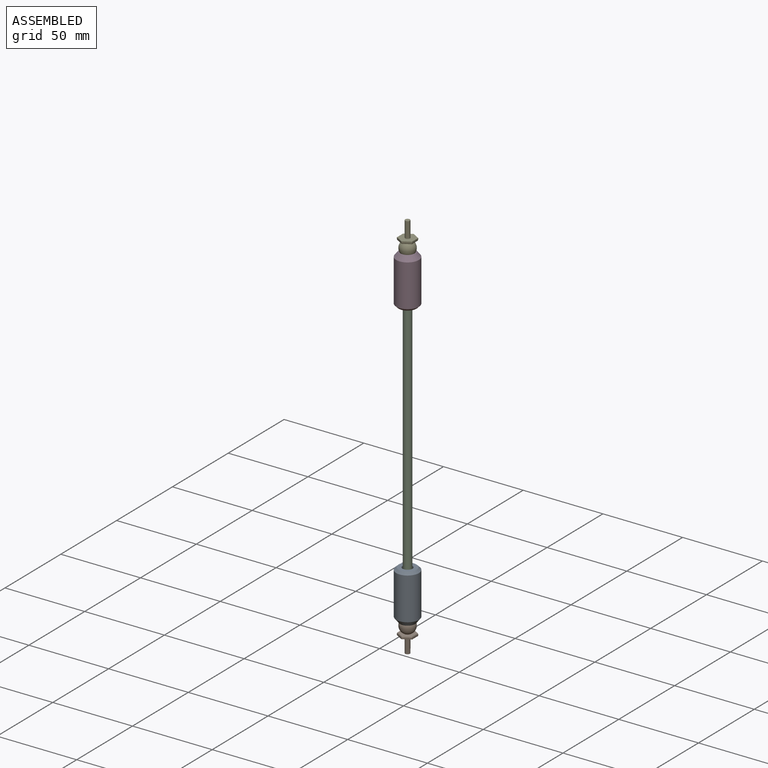
[diagram: assembled view]
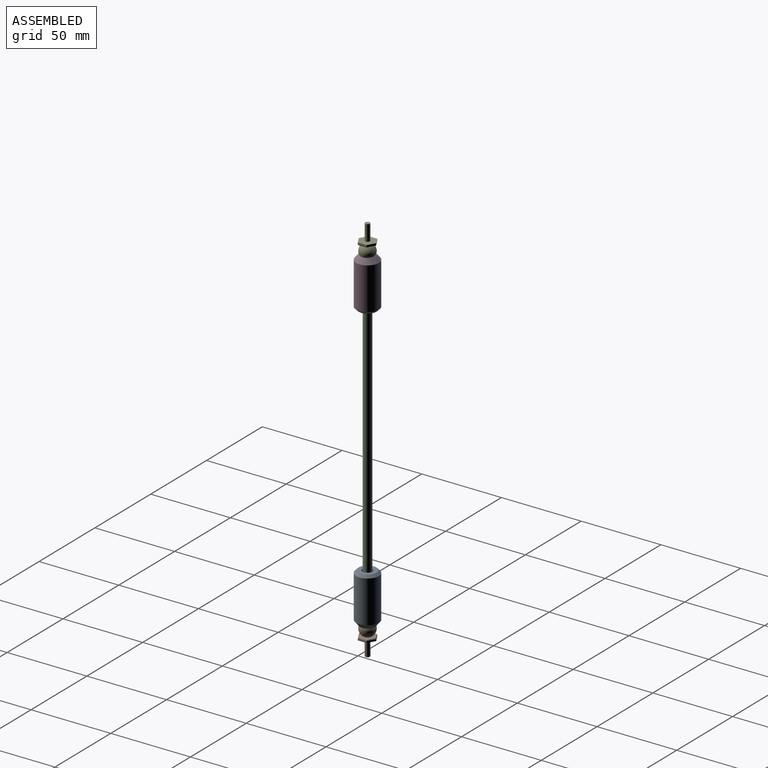
[diagram: assembled view, second angle]
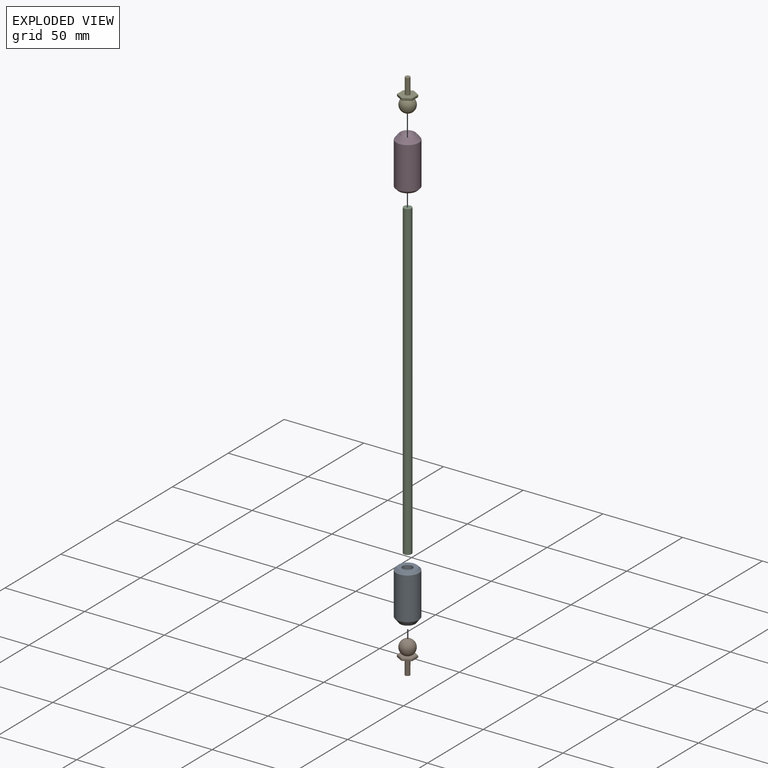
[diagram: exploded view]
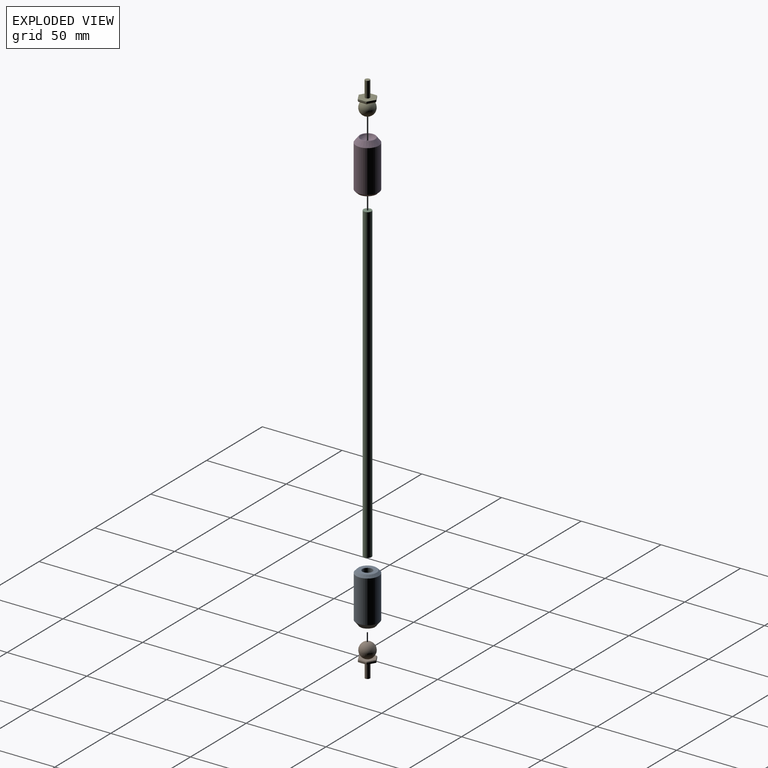
[diagram: exploded view, second angle]
ASSEMBLY  parts=5 mates=4
PART A: 13 faces, bbox 14.2x14.2x31 mm
  f0: plane 12.1x12.1mm, normal (0,0,1), area 107.9mm2, adj f4,f5
  f1: cone r=4.76mm half-angle=38deg, axis (0,0,1), area 142mm2, adj f2,f6
  f2: plane 9.53x9.53mm, normal (0,0,-1), area 9.5mm2, adj f1,f3
  f3: sphere r=4.86mm, area 80.2mm2, adj f2,f4
  f4: cylinder r=1.5mm len=3mm, axis (0,0,1), area 3.5mm2, adj f0,f3
  f5: cylinder r=6.05mm len=12.1mm, axis (0,0,-1), area 114mm2, adj f0,f7
  f6: cylinder r=7.11mm len=26.5mm, axis (0,0,-1), area 1183.2mm2, adj f1,f9
  f7: plane 12.1x12.1mm, normal (0,0,-1), area 115mm2, adj f5
  f8: plane 11.21x11.21mm, normal (0,0,1), area 65.6mm2, adj f9,f12
  f9: cone r=5.61mm half-angle=45deg, axis (0,0,-1), area 84.7mm2, adj f6,f8
  f10: plane 6.1x6.1mm, normal (0,0,1), area 29.2mm2, adj f11
  f11: cylinder r=3.05mm len=23.8mm, axis (0,0,1), area 456.1mm2, adj f10,f12
  f12: cone r=3.05mm half-angle=45deg, axis (0,0,1), area 5.6mm2, adj f8,f11
PART B: 17 faces, bbox 9.5x11x20.5 mm
  f0: plane 4.76x2.75mm, normal (-0.5,0.87,0), area 5.5mm2, adj f1,f5,f6,f13
  f1: plane 5.5x1mm, normal (-1,0,0), area 5.5mm2, adj f0,f2,f6,f12
  f2: plane 4.76x2.75mm, normal (-0.5,-0.87,0), area 5.5mm2, adj f1,f3,f6,f11
  f3: plane 4.76x2.75mm, normal (0.5,-0.87,0), area 5.5mm2, adj f2,f4,f6,f10
  f4: plane 5.5x1mm, normal (1,0,0), area 5.5mm2, adj f3,f5,f6,f9
  f5: plane 4.76x2.75mm, normal (0.5,0.87,0), area 5.5mm2, adj f0,f4,f6,f8
  f6: plane 11x9.53mm, normal (0,0,-1), area 71.5mm2, adj f0,f1,f2,f3,f4,f5,f15
  f7: plane 10.46x9.06mm, normal (0,0,1), area 56.9mm2, adj f8,f9,f10,f11,f12,f13,f14
  f8: plane 4.76x2.88mm, normal (0.45,0.78,0.42), area 3mm2, adj f5,f7,f9,f13
  f9: plane 5.5x0.5mm, normal (0.91,0,0.42), area 3mm2, adj f4,f7,f8,f10
  f10: plane 4.76x2.88mm, normal (0.45,-0.78,0.42), area 3mm2, adj f3,f7,f9,f11
  f11: plane 4.76x2.88mm, normal (-0.45,-0.78,0.42), area 3mm2, adj f2,f7,f10,f12
  f12: plane 5.5x0.5mm, normal (-0.91,0,0.42), area 3mm2, adj f1,f7,f11,f13
  f13: plane 4.76x2.88mm, normal (-0.45,0.78,0.42), area 3mm2, adj f0,f7,f8,f12
  f14: sphere r=4.76mm, area 270.1mm2, adj f7
  f15: cylinder r=1.5mm len=10mm, axis (0,0,1), area 94.2mm2, adj f6,f16
  f16: plane 3x3mm, normal (0,0,-1), area 7.1mm2, adj f15
PART C: 3 faces, bbox 5x5x196 mm
  f0: cylinder r=2.5mm len=196mm, axis (0,0,-1), area 3078.8mm2, adj f1,f2
  f1: plane 5x5mm, normal (0,0,1), area 19.6mm2, adj f0
  f2: plane 5x5mm, normal (0,0,-1), area 19.6mm2, adj f0
PART D: same geometry as A
PART E: same geometry as B
PLACE A rot(axis=(0,0,1),180deg) t=(5.91,-54.8,-128.3)mm
PLACE B rot(axis=(0,1,0),0.1deg) t=(5.91,-54.8,-128.3)mm
PLACE C rot(axis=(1,0,0),180deg) t=(5.91,-54.8,-21.3)mm
PLACE D rot(axis=(0,1,0),180deg) t=(5.91,-54.8,85.7)mm
PLACE E rot(axis=(0,1,0),180deg) t=(5.91,-54.8,85.7)mm
MATE fastened A.f11 <-> C.f0  axis (0,0,1) through (5.91,-54.8,-119.3)mm
MATE ball E.f15 <-> D.f4  axis (0,0,-1) through (5.91,-54.8,85.7)mm
MATE ball B.f15 <-> A.f4  axis (0,0,1) through (5.91,-54.8,-128.3)mm
MATE fastened C.f0 <-> D.f11  axis (0,0,1) through (5.91,-54.8,76.7)mm
